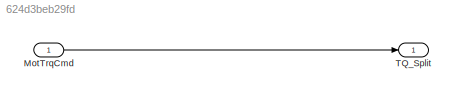
MODEL slx_624d3beb29fd
KIND model
CONFIG AbsTol = auto
CONFIG EnableMultiTasking = on
CONFIG FixedStep = 0.01
CONFIG MaxStep = auto
CONFIG MinStep = auto
CONFIG RelTol = 1e-3
CONFIG SampleTimeConstraint = Unconstrained
CONFIG Solver = FixedStepDiscrete
CONFIG SolverName = FixedStepDiscrete
CONFIG StartTime = 0.0
CONFIG StopTime = inf
BLOCK [Inport] MotTrqCmd
BLOCK [Outport] TQ_Split
  VectorParamsAs1DForOutWhenUnconnected = off
LINE MotTrqCmd:1 -> TQ_Split:1
